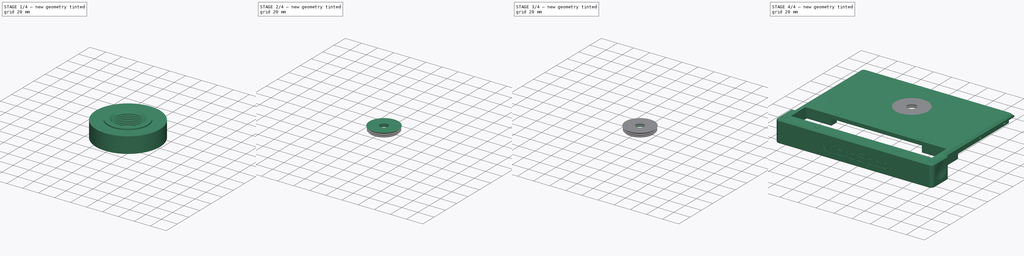
[diagram: build sequence overview — one tinted view per stage of 4, left to right]
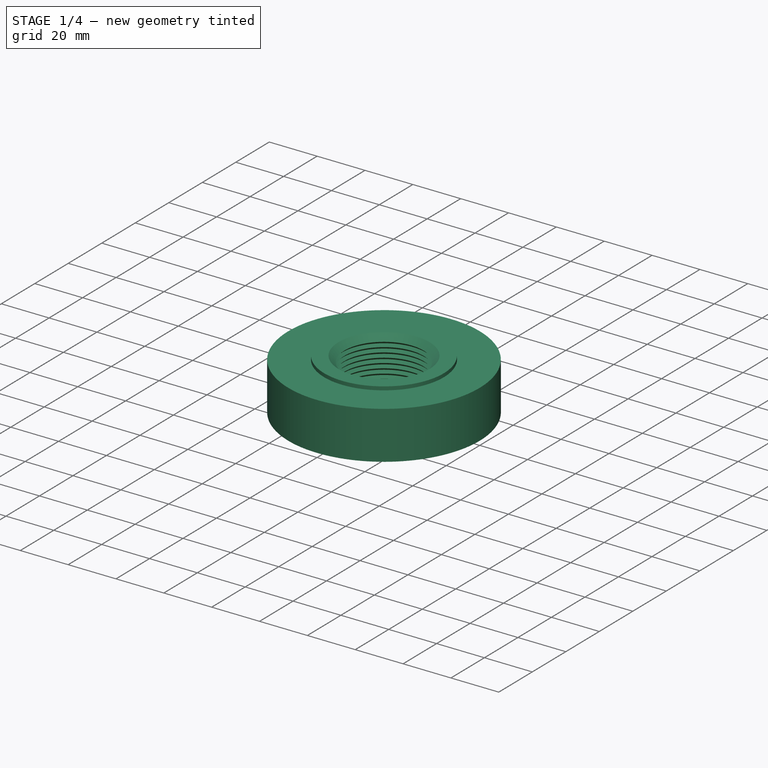
[diagram: stage 1 of 4 — iso view after this stage's code; geometry added in this stage tinted green]
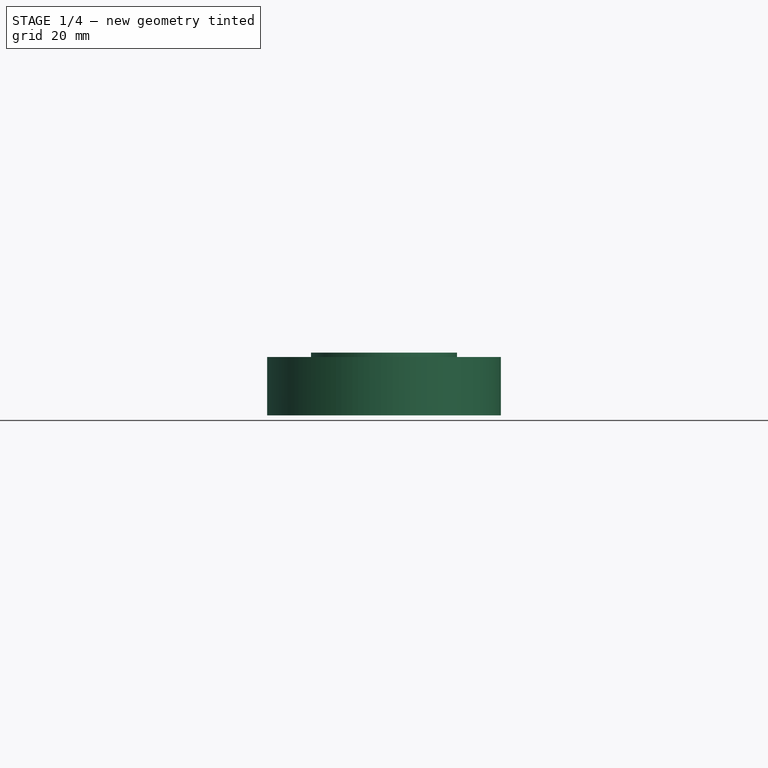
[diagram: stage 1 of 4 — front view after this stage's code; geometry added in this stage tinted green]
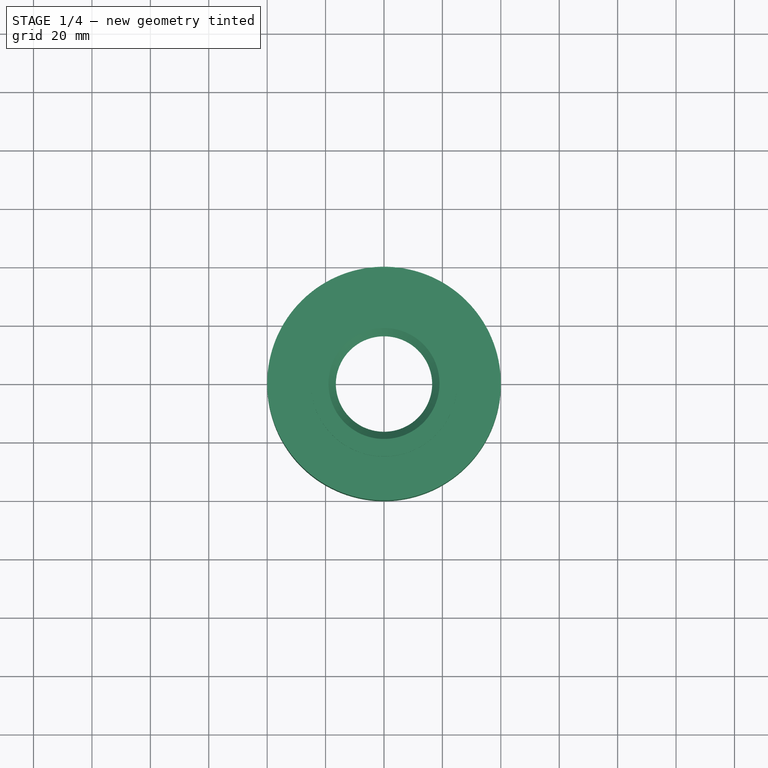
[diagram: stage 1 of 4 — top view after this stage's code; geometry added in this stage tinted green]
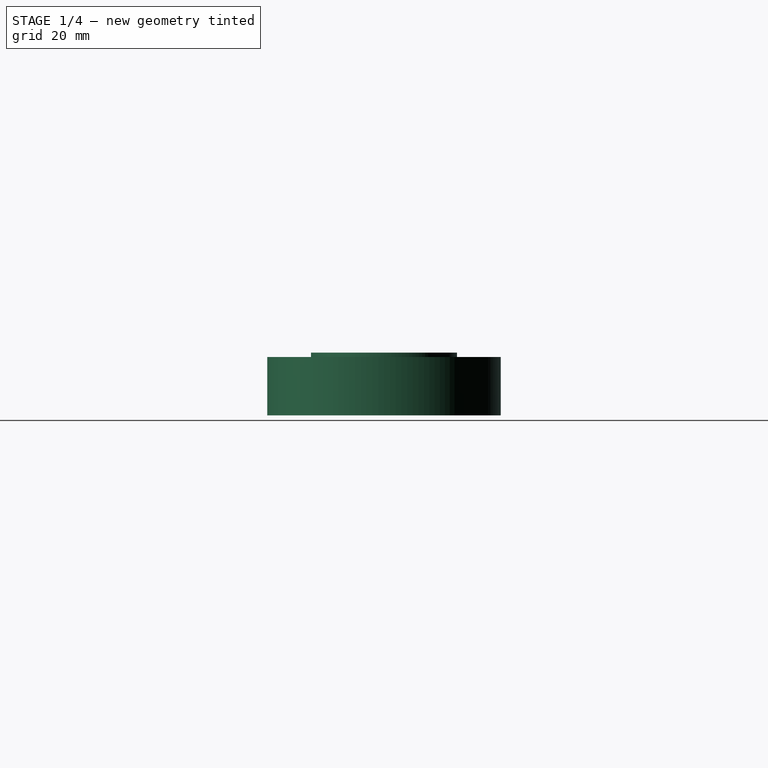
[diagram: stage 1 of 4 — right view after this stage's code; geometry added in this stage tinted green]
FCSTD DOCUMENT  (FreeCAD 0.16RUnknown)
Label: FlexiRing
License: All rights reserved
LicenseURL: http://en.wikipedia.org/wiki/All_rights_reserved
objects: Part::FeaturePython×5, Sketcher::SketchObject×4, PartDesign::Revolution×4, Part::Cut×3, App::DocumentObjectGroup×2, Spreadsheet::Sheet×1, Part::Fillet×1
note: 21 computed .brp shape members not serialized (recipe doc carries the construction recipe); baked Part::Feature solids carry a one-line shape summary decoded from their .brp

FEATURE [Sketcher::SketchObject] Sketch001  label="OuterGroove"
  Placement = pos=(0,0,0) rot=(1,0,0;1.5708rad)
  sketch-geometry (6):
    g0: LineSegment StartX=17.5 StartY=3.5 StartZ=0 EndX=16.5 EndY=2.5 EndZ=0
    g1: LineSegment StartX=16.5 StartY=2.5 StartZ=0 EndX=17.5 EndY=1.5 EndZ=0
    g2: LineSegment StartX=17.5 StartY=1.5 StartZ=0 EndX=40 EndY=1.5 EndZ=0
    g3: LineSegment StartX=40 StartY=1.5 StartZ=0 EndX=40 EndY=3.5 EndZ=0
    g4: LineSegment StartX=40 StartY=3.5 StartZ=0 EndX=17.5 EndY=3.5 EndZ=0
    g5: LineSegment [constr] StartX=16.5 StartY=2.5 StartZ=0 EndX=40 EndY=2.5 EndZ=0
  constraints (17):
    c: Coincident(g0,g1)
    c: Coincident(g1,g2)
    c: Coincident(g2,g3)
    c: Coincident(g3,g4)
    c: Coincident(g4,g0)
    c: Horizontal(g2)
    c: Horizontal(g4)
    c: Vertical(g3)
    c: Horizontal(g5)
    c: Coincident(g0,g5)
    c: Symmetric(g1,g0,g5)
    c: PointOnObject(g5,g3)
    c: Perpendicular(g1,g0)
    c: DistanceY(g3,g3) = 2  'OuterThick'
    c: DistanceX(g3) = 40  'Constraint15'
    c: DistanceX(g0) = 16.5
    c: DistanceY(g0) = 2.5
FEATURE [PartDesign::Revolution] Revolution001  label="OuterGroove001"
  Angle = 360
  Axis = (0,0,1)
  Base = (0,0,0)
  Placement = pos=(0,0,0) rot=(1,0,0;1.5708rad)
  ReferenceAxis = -> Sketch001 [V_Axis]
  Reversed = true
  Sketch = -> Sketch001
FEATURE [Part::FeaturePython] Array  label="OuterGrooves"  # Draft array (typed FeaturePython)
  Angle = 360
  ArrayType = 0
  Axis = (0,0,1)
  Base = -> Revolution001
  Center = (0,0,0)
  Fuse = true
  IntervalAxis = (0,0,0)
  IntervalX = (1,0,0)
  IntervalY = (0,1,0)
  IntervalZ = (0,0,-2)
  NumberPolar = 1
  NumberX = 1
  NumberY = 1
  NumberZ = 10
  expr: IntervalZ.z = Sketch001.Constraints.OuterThick * -1
FEATURE [App::DocumentObjectGroup] Group  label="Reference"
  Group = -> [UpperCover_01]
FEATURE [Sketcher::SketchObject] Sketch003  label="UpperLipCut"
  Placement = pos=(0,0,0) rot=(-1,0,0;4.71239rad)
  sketch-geometry (4):
    g0: LineSegment StartX=16.5 StartY=2.5 StartZ=0 EndX=19 EndY=5 EndZ=0
    g1: LineSegment StartX=19 StartY=5 StartZ=0 EndX=25 EndY=5 EndZ=0
    g2: LineSegment StartX=25 StartY=5 StartZ=0 EndX=25 EndY=2.5 EndZ=0
    g3: LineSegment StartX=25 StartY=2.5 StartZ=0 EndX=16.5 EndY=2.5 EndZ=0
  constraints (12):
    c: Coincident(g0,g1)
    c: Coincident(g1,g2)
    c: Coincident(g2,g3)
    c: Coincident(g0,g3)
    c: Horizontal(g1)
    c: Horizontal(g3)
    c: Vertical(g2)
    c: Angle(g3,g0) = 0.785398
    c: DistanceY(g0) = 2.5
    c: DistanceX(g0) = 16.5
    c: DistanceY(g0) = 5
    c: DistanceX(g1) = 25
FEATURE [PartDesign::Revolution] Revolution003  label="UpperLipCut001"
  Angle = 360
  Axis = (0,0,1)
  Base = (0,0,0)
  Placement = pos=(0,0,0) rot=(-1,0,0;4.71239rad)
  ReferenceAxis = -> Sketch003 [V_Axis]
  Reversed = true
  Sketch = -> Sketch003
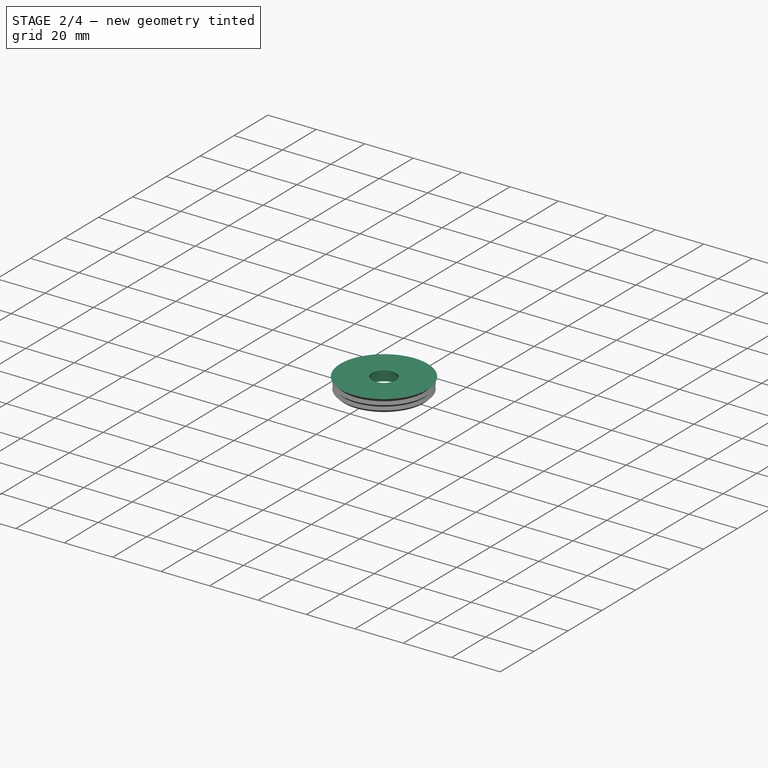
[diagram: stage 2 of 4 — iso view after this stage's code; geometry added in this stage tinted green]
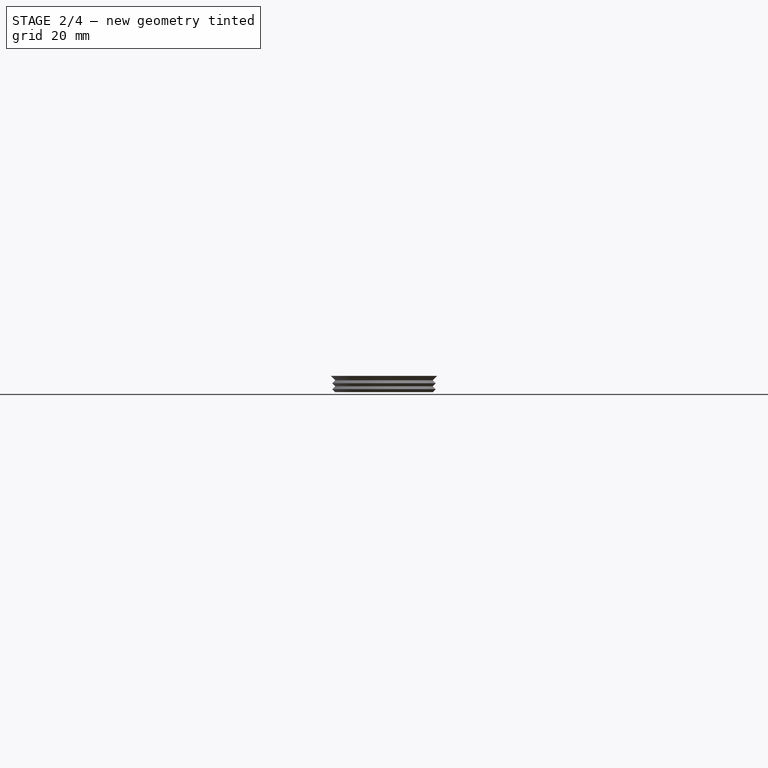
[diagram: stage 2 of 4 — front view after this stage's code; geometry added in this stage tinted green]
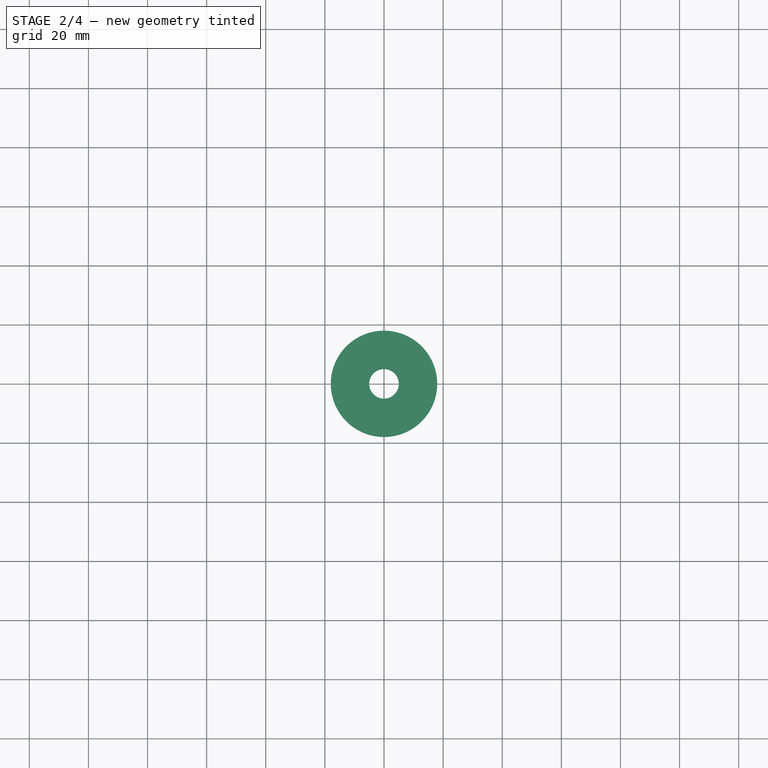
[diagram: stage 2 of 4 — top view after this stage's code; geometry added in this stage tinted green]
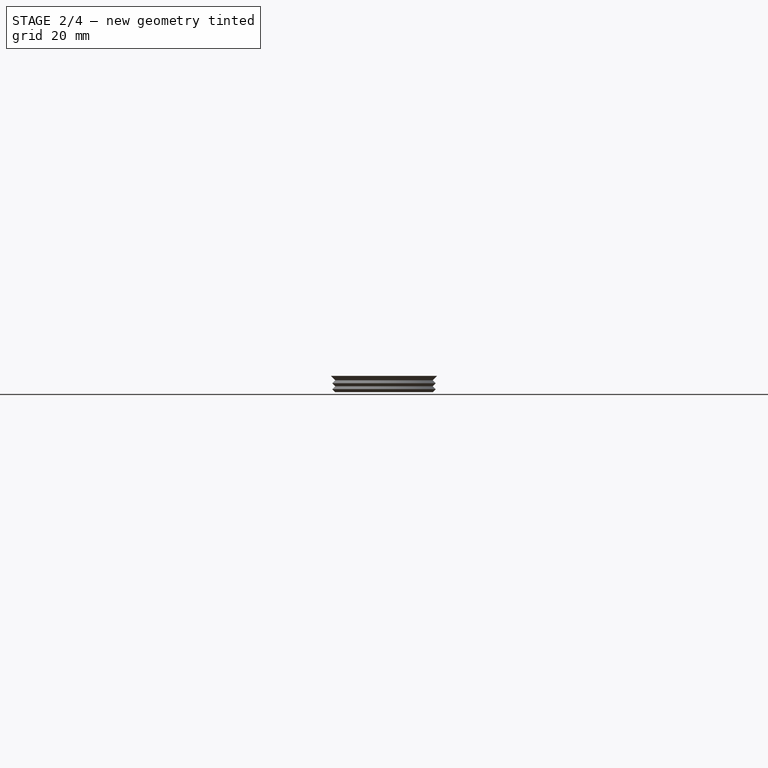
[diagram: stage 2 of 4 — right view after this stage's code; geometry added in this stage tinted green]
FEATURE [Spreadsheet::Sheet] Spreadsheet  label="pars"
  cells = A1=Bolts and Nuts; B1=Value; D1=Components; E1=Value; A2=Thread Tight Tolerance (Radius, ratio); B2(ThrTighRatio)=0.96; D2=Tight Cilinder Tolerances (Radius, mm); E2(CilTight)=0.1; A3=Thread Tight Tolerance (Radius, mm); B3(ThrTightmm)=0.1; D3=Loose Cilinder Tolerances (Radius, mm); E3(CilLoose)=0.1; A5=Nut Slot Width Clearance (mm); B5(NutWidthClearmm)=0.1; A6=Nut Slot Thickess Clearance (mm); B6(NutThickClearmm)=0.1; A13=Particular parameters; B13=Value; A14=Flexible Sheet Thickness; B14(FlxThick)=1; A15=Plate Thickness; B15(PlasteThick)=4
FEATURE [Sketcher::SketchObject] Sketch  label="Base"
  Placement = pos=(0,0,0) rot=(1,0,0;1.5708rad)
  expr: Constraints[20] = pars.FlxThick
  expr: Constraints[24] = pars.PlasteThick
  expr: Constraints[19] = pars.FlxThick
  sketch-geometry (10):
    g0: LineSegment StartX=5 StartY=4 StartZ=0 EndX=5 EndY=3.2 EndZ=0
    g1: LineSegment StartX=5 StartY=3.2 StartZ=0 EndX=8 EndY=3.2 EndZ=0
    g2: LineSegment StartX=8 StartY=3.2 StartZ=0 EndX=8 EndY=-1.5 EndZ=0
    g3: LineSegment StartX=8 StartY=-1.5 StartZ=0 EndX=20 EndY=-1.5 EndZ=0
    g4: LineSegment StartX=20 StartY=-1.5 StartZ=0 EndX=20 EndY=4 EndZ=0
    g5: LineSegment StartX=20 StartY=4 StartZ=0 EndX=5 EndY=4 EndZ=0
    g6: LineSegment StartX=10 StartY=3 StartZ=0 EndX=15 EndY=3 EndZ=0
    g7: LineSegment StartX=15 StartY=3 StartZ=0 EndX=15 EndY=-0.5 EndZ=0
    g8: LineSegment StartX=15 StartY=-0.5 StartZ=0 EndX=10 EndY=-0.5 EndZ=0
    g9: LineSegment StartX=10 StartY=-0.5 StartZ=0 EndX=10 EndY=3 EndZ=0
  constraints (30):
    c: Coincident(g0,g1)
    c: Coincident(g1,g2)
    c: Coincident(g2,g3)
    c: Coincident(g3,g4)
    c: Coincident(g4,g5)
    c: Coincident(g0,g5)
    c: Vertical(g2)
    c: Vertical(g0)
    c: Vertical(g4)
    c: Horizontal(g1)
    c: Horizontal(g5)
    c: Horizontal(g3)
    c: DistanceY(g0,g0) = 0.8  'LipThickness'
    c: Coincident(g6,g7)
    c: Coincident(g8,g9)
    c: Horizontal(g6)
    c: Horizontal(g8)
    c: Vertical(g7)
    c: Vertical(g9)
    c: DistanceY(g6,g4) = 1
    c: DistanceY(g2,g8) = 1
    c: DistanceX(g4) = 20
    c: DistanceX(g6,g6) = 5
    c: DistanceX(g0) = 5
    c: DistanceY(g4) = 4
    c: Coincident(g8,g7)
    c: DistanceY(g2) = -1.5
    c: Coincident(g9,g6)
    c: DistanceX(g1,g6) = 2
    c: DistanceX(g1,g1) = 3
FEATURE [PartDesign::Revolution] Revolution  label="Base001"
  Angle = 360
  Axis = (0,0,1)
  Base = (0,0,0)
  Placement = pos=(0,0,0) rot=(1,0,0;1.5708rad)
  ReferenceAxis = -> Sketch [V_Axis]
  Reversed = true
  Sketch = -> Sketch
FEATURE [Part::Cut] Cut
  Base = -> Revolution
  Tool = -> Array
FEATURE [Part::Cut] Cut002
  Base = -> Cut
  Tool = -> Revolution003
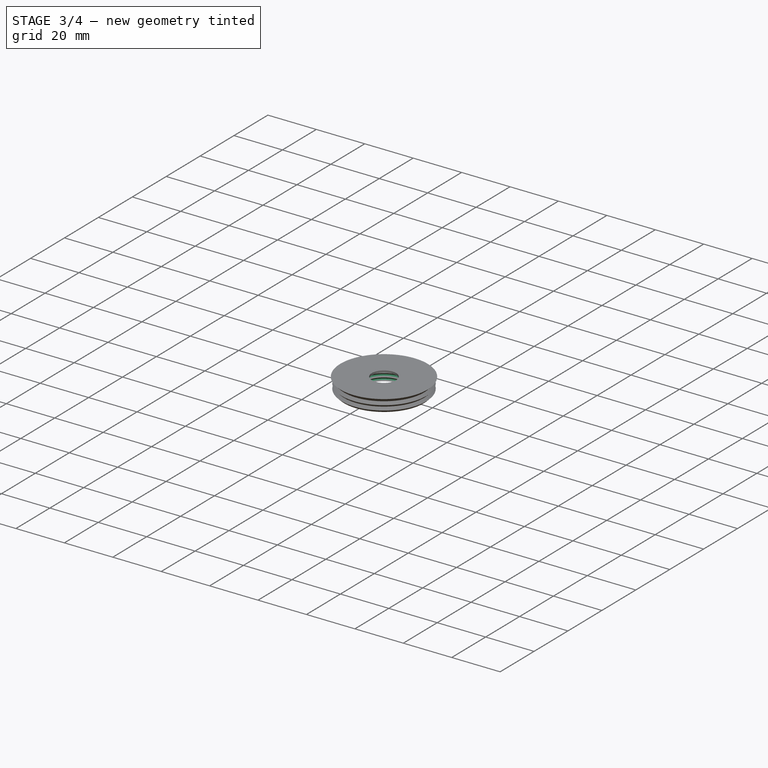
[diagram: stage 3 of 4 — iso view after this stage's code; geometry added in this stage tinted green]
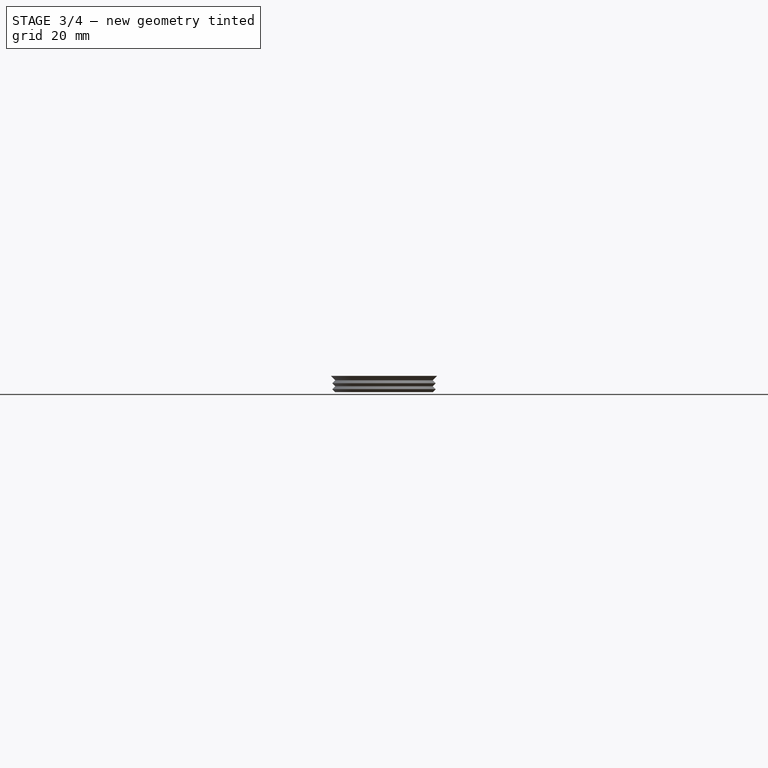
[diagram: stage 3 of 4 — front view after this stage's code; geometry added in this stage tinted green]
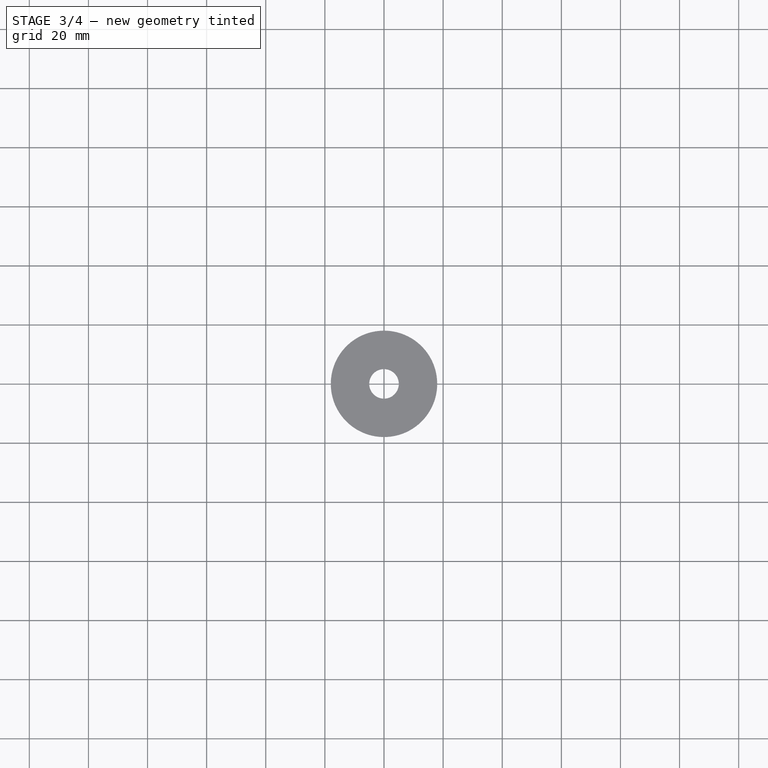
[diagram: stage 3 of 4 — top view after this stage's code; geometry added in this stage tinted green]
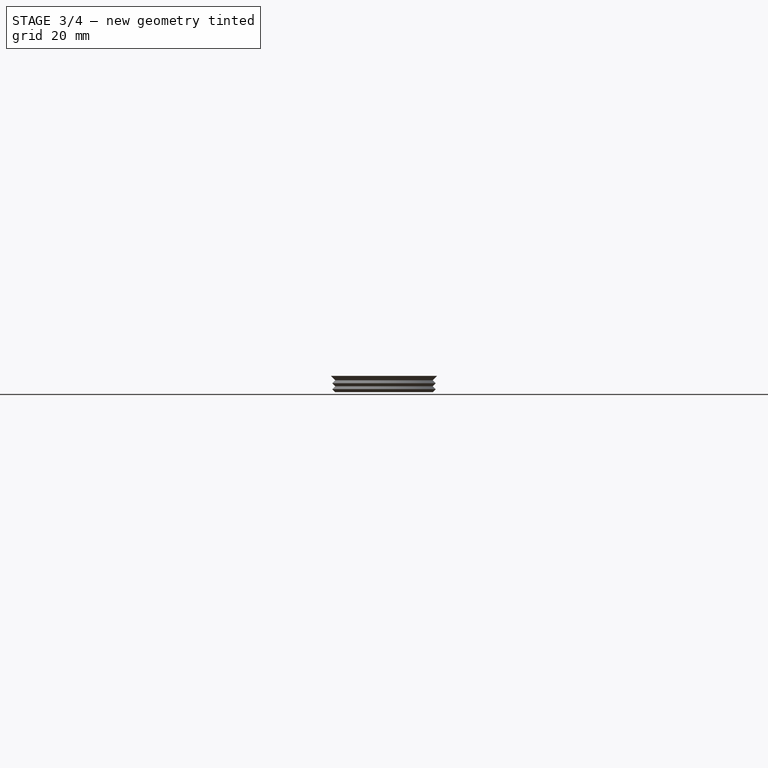
[diagram: stage 3 of 4 — right view after this stage's code; geometry added in this stage tinted green]
FEATURE [Sketcher::SketchObject] Sketch002  label="InnerGroove"
  Placement = pos=(0,0,0) rot=(1,0,0;1.5708rad)
  expr: Constraints[15] = pars.PlasteThick - Base.Constraints.LipThickness
  sketch-geometry (6):
    g0: LineSegment StartX=8 StartY=3.2 StartZ=0 EndX=8.8 EndY=2.4 EndZ=0
    g1: LineSegment StartX=8.8 StartY=2.4 StartZ=0 EndX=8 EndY=1.6 EndZ=0
    g2: LineSegment StartX=8 StartY=1.6 StartZ=0 EndX=2 EndY=1.6 EndZ=0
    g3: LineSegment StartX=2 StartY=1.6 StartZ=0 EndX=2 EndY=3.2 EndZ=0
    g4: LineSegment StartX=2 StartY=3.2 StartZ=0 EndX=8 EndY=3.2 EndZ=0
    g5: LineSegment [constr] StartX=2 StartY=2.4 StartZ=0 EndX=8.8 EndY=2.4 EndZ=0
  constraints (17):
    c: Coincident(g0,g1)
    c: Coincident(g1,g2)
    c: Coincident(g2,g3)
    c: Coincident(g3,g4)
    c: Coincident(g4,g0)
    c: Horizontal(g4)
    c: Horizontal(g2)
    c: Vertical(g3)
    c: Coincident(g5,g0)
    c: PointOnObject(g5,g3)
    c: Horizontal(g5)
    c: Symmetric(g1,g0,g5)
    c: Perpendicular(g1,g0)
    c: DistanceY(g3,g3) = 1.6  'InnerThick'
    c: DistanceX(g2) = 2
    c: DistanceY(g3) = 3.2
    c: DistanceX(g0) = 8
FEATURE [PartDesign::Revolution] Revolution002  label="InnerGroove001"
  Angle = 360
  Axis = (0,0,1)
  Base = (0,0,0)
  Placement = pos=(0,0,0) rot=(1,0,0;1.5708rad)
  ReferenceAxis = -> Sketch002 [V_Axis]
  Reversed = true
  Sketch = -> Sketch002
FEATURE [Part::FeaturePython] Array001  label="InnerGrooves"  # Draft array (typed FeaturePython)
  Angle = 360
  ArrayType = 0
  Axis = (0,0,1)
  Base = -> Revolution002
  Center = (0,0,0)
  Fuse = true
  IntervalAxis = (0,0,0)
  IntervalX = (1,0,0)
  IntervalY = (0,1,0)
  IntervalZ = (0,0,-1.6)
  NumberPolar = 1
  NumberX = 1
  NumberY = 1
  NumberZ = 10
  expr: IntervalZ.z = InnerGroove.Constraints.InnerThick * -1
FEATURE [Part::Cut] Cut001  label="GroovesCut"
  Base = -> Cut002
  Tool = -> Array001
FEATURE [Part::FeaturePython] refine  label="refine_GroovesCut"  # WARN: FeaturePython — macro-defined, semantics opaque (R4)
  Base = -> Cut001
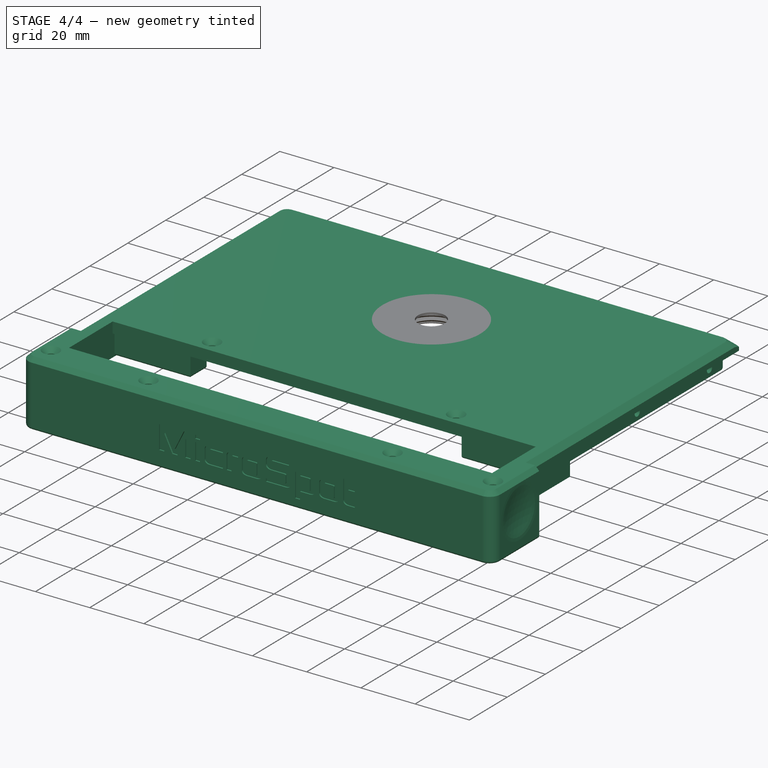
[diagram: stage 4 of 4 — iso view after this stage's code; geometry added in this stage tinted green]
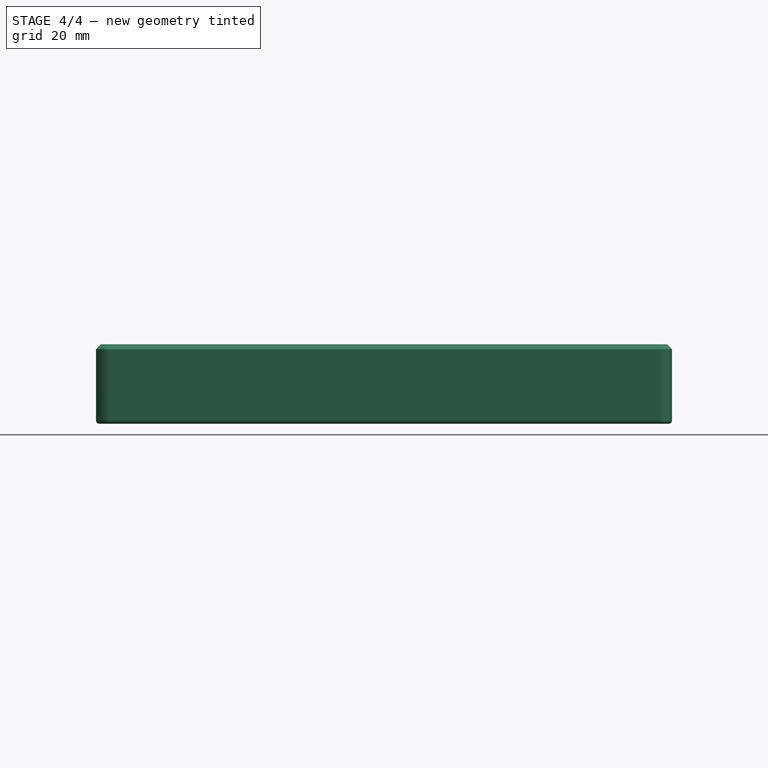
[diagram: stage 4 of 4 — front view after this stage's code; geometry added in this stage tinted green]
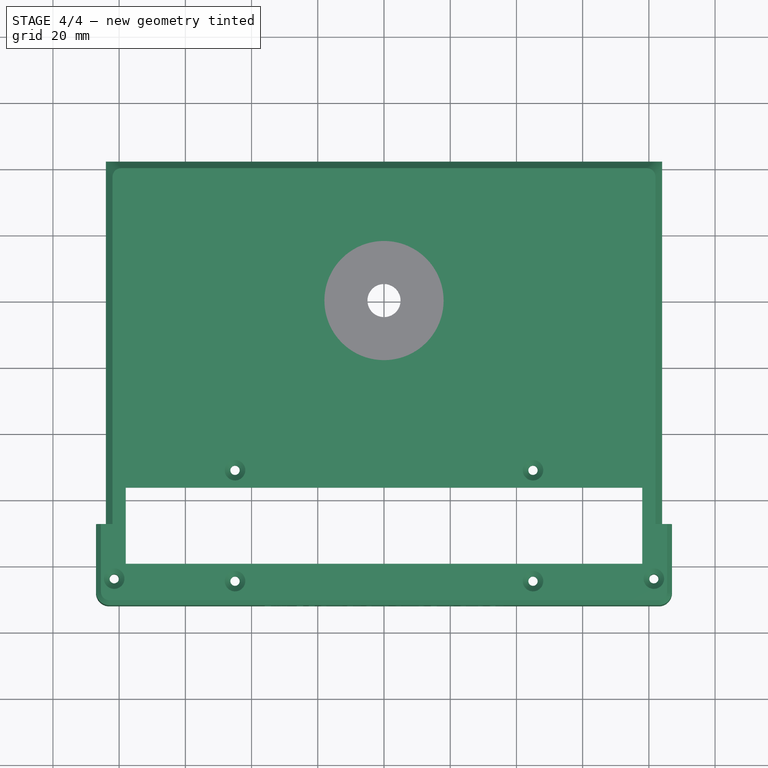
[diagram: stage 4 of 4 — top view after this stage's code; geometry added in this stage tinted green]
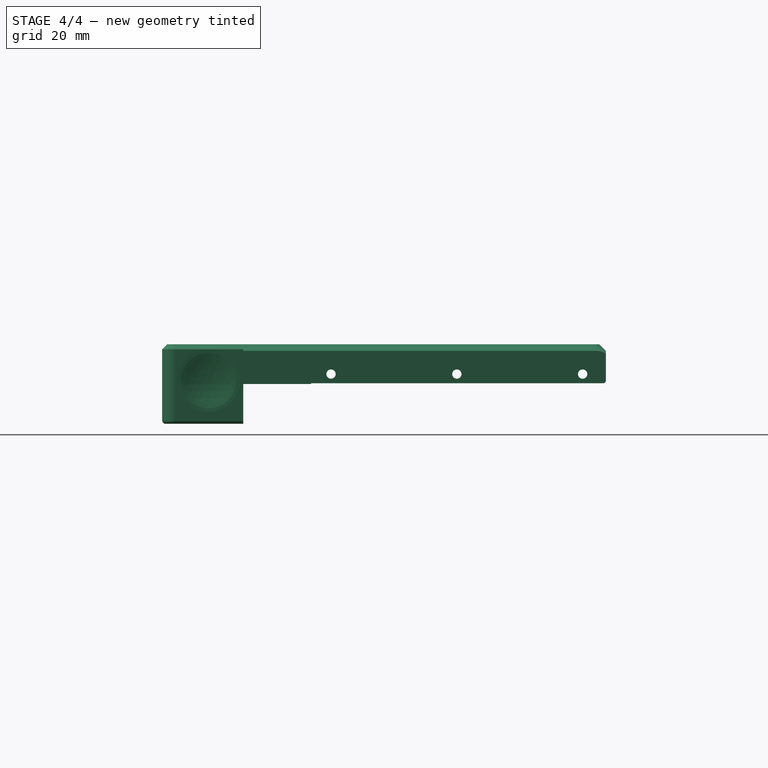
[diagram: stage 4 of 4 — right view after this stage's code; geometry added in this stage tinted green]
FEATURE [Part::FeaturePython] UpperCover_01  label="UpperCover"  # a2plus imported part (geometry in sourceFile) (typed FeaturePython)
  fixedPosition = false
  sourceFile = ./../../Mechanical/src/UpperLid/UpperCover.fcstd
  timeLastImport = 1.52121e+09
  updateColors = true
FEATURE [Part::Fillet] Fillet  label="AntiCreaseFillet"
  Base = -> refine
  Edges = 1 edges r=0.4: [Edge27]
FEATURE [App::DocumentObjectGroup] Group001  label="src"
  Group = -> [Revolution002,Cut001,refine,Fillet]
FEATURE [Part::FeaturePython] Clone001  label="FlexiRing"  # Draft clone (typed FeaturePython)
  Objects = -> [Fillet]
  Scale = (1,1,1)
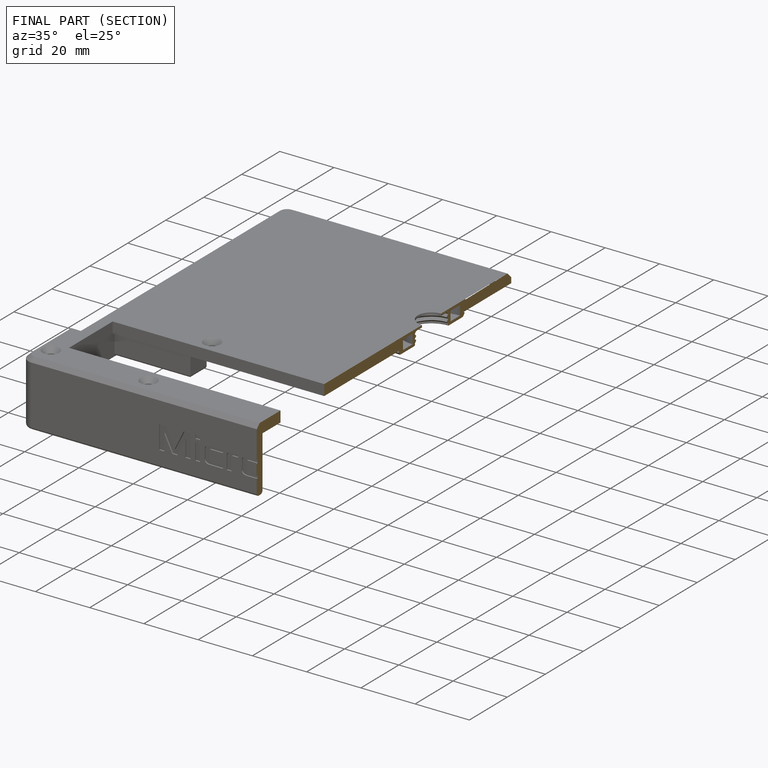
[diagram: finished part — half-section view (interior)]
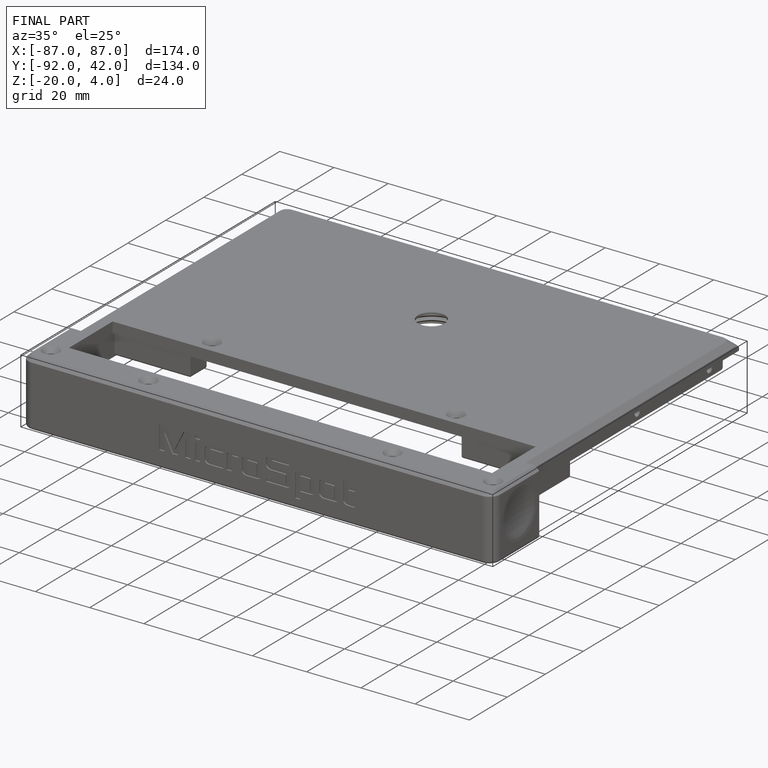
[diagram: finished part — iso view with bounding-box wireframe]
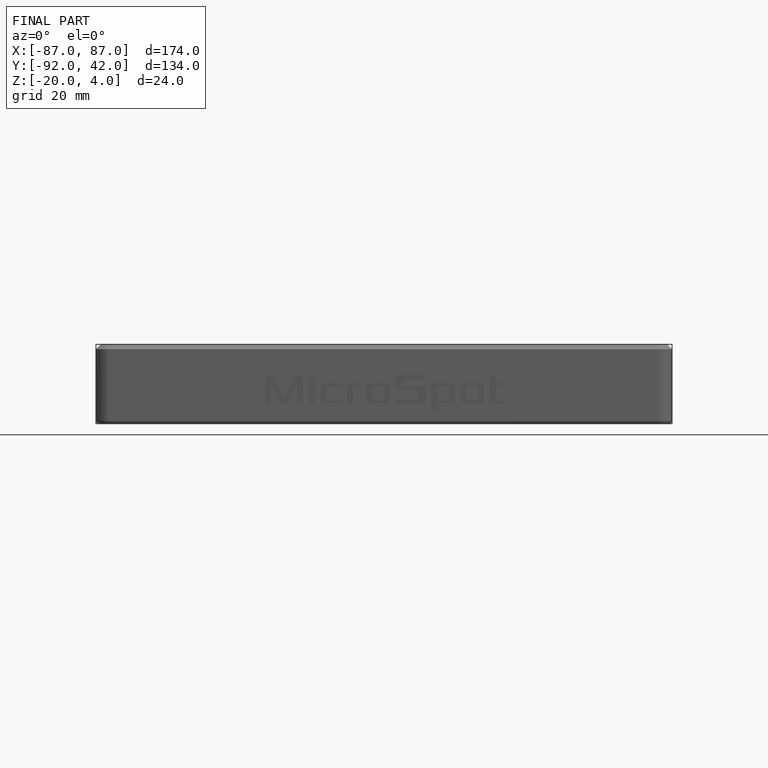
[diagram: finished part — front view with bounding-box wireframe]
